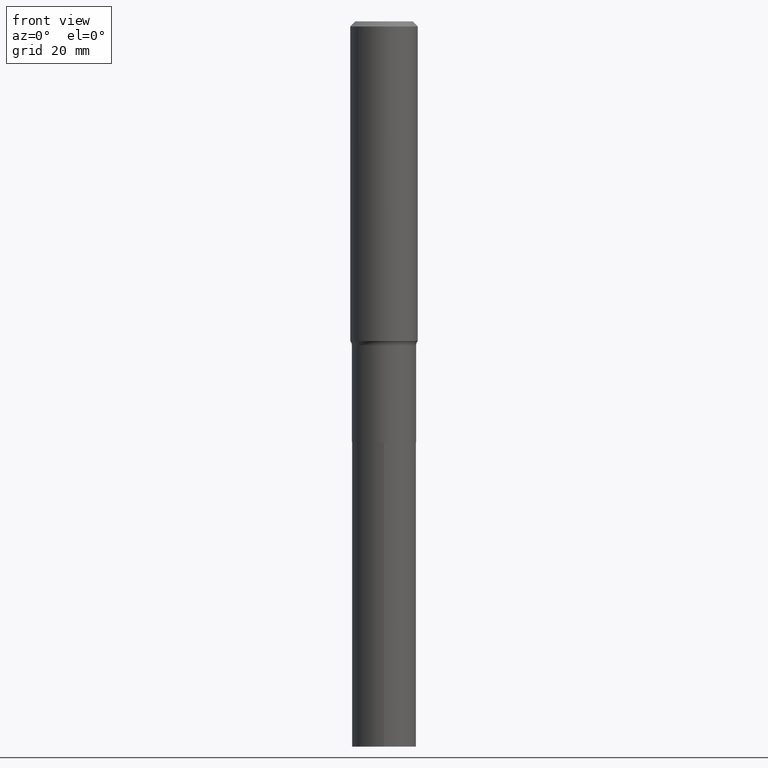
[diagram: clean part render]
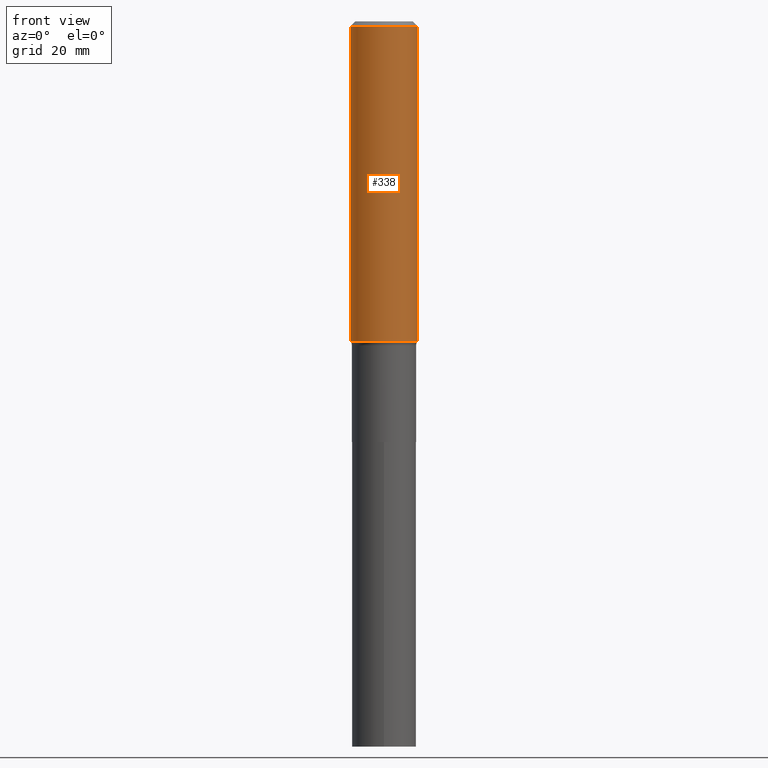
[diagram: same view with one face highlighted and labeled with its STEP entity id]
A machine part, front view. The second image highlights one B-rep face of the part: STEP entity #338.
In plain terms, the highlighted cylindrical surface (edge-blend (fillet) strip) has radius 10 mm, axis along (-0, 0, 1).
Its self-contained STEP definition (entity closure, byte-faithful):
#18 = EDGE_CURVE ( 'NONE', #465, #60, #77, .T. ) ;
#20 = DIRECTION ( 'NONE',  ( -2.445468806185136597E-29, 3.491481338843145583E-15, 1.000000000000000000 ) ) ;
#25 = VERTEX_POINT ( 'NONE', #265 ) ;
#36 = CARTESIAN_POINT ( 'NONE',  ( 9.123302149498150808E-29, -1.302565754387660920E-14, -3.730696595443491859 ) ) ;
#41 = CIRCLE ( 'NONE', #414, 0.3937000000000004940 ) ;
#53 = CYLINDRICAL_SURFACE ( 'NONE', #324, 0.3937000000000002164 ) ;
#60 = VERTEX_POINT ( 'NONE', #443 ) ;
#64 = ORIENTED_EDGE ( 'NONE', *, *, #71, .T. ) ;
#71 = EDGE_CURVE ( 'NONE', #465, #25, #41, .T. ) ;
#72 = VECTOR ( 'NONE', #448, 39.37007874015748143 ) ;
#77 = LINE ( 'NONE', #344, #99 ) ;
#99 = VECTOR ( 'NONE', #226, 39.37007874015748143 ) ;
#110 = LINE ( 'NONE', #310, #72 ) ;
#122 = AXIS2_PLACEMENT_3D ( 'NONE', #316, #455, #130 ) ;
#130 = DIRECTION ( 'NONE',  ( 1.000000000000000000, -6.982962677686265922E-15, 0.000000000000000000 ) ) ;
#143 = EDGE_LOOP ( 'NONE', ( #203, #64, #362, #254 ) ) ;
#163 = DIRECTION ( 'NONE',  ( 1.000000000000000000, -6.982962677686266711E-15, 4.876176775795935793E-29 ) ) ;
#174 = EDGE_CURVE ( 'NONE', #25, #434, #110, .T. ) ;
#180 = CIRCLE ( 'NONE', #122, 0.3937000000000000499 ) ;
#203 = ORIENTED_EDGE ( 'NONE', *, *, #18, .F. ) ;
#226 = DIRECTION ( 'NONE',  ( -2.445468806185136877E-29, 3.491481338843145188E-15, 1.000000000000000000 ) ) ;
#233 = DIRECTION ( 'NONE',  ( 1.000000000000000000, -6.982962677686265133E-15, 0.000000000000000000 ) ) ;
#242 = CARTESIAN_POINT ( 'NONE',  ( -0.3937000000000006605, -1.022825079318909047E-14, -3.730696595443491859 ) ) ;
#254 = ORIENTED_EDGE ( 'NONE', *, *, #343, .F. ) ;
#265 = CARTESIAN_POINT ( 'NONE',  ( 0.3937000000000006605, -1.577484995008169557E-14, -3.730696595443491859 ) ) ;
#310 = CARTESIAN_POINT ( 'NONE',  ( 0.3937000000000002164, -2.749192406205084794E-15, 1.919750796630861012E-29 ) ) ;
#315 = FACE_OUTER_BOUND ( 'NONE', #143, .T. ) ;
#316 = CARTESIAN_POINT ( 'NONE',  ( 1.444171603492642072E-30, -2.061894304653833712E-16, -0.05905500000000039884 ) ) ;
#324 = AXIS2_PLACEMENT_3D ( 'NONE', #353, #20, #163 ) ;
#338 = ADVANCED_FACE ( 'NONE', ( #315 ), #53, .T. ) ;
#343 = EDGE_CURVE ( 'NONE', #60, #434, #180, .T. ) ;
#344 = CARTESIAN_POINT ( 'NONE',  ( -0.3937000000000002164, 2.797406750687515970E-15, -1.936584745033357576E-29 ) ) ;
#353 = CARTESIAN_POINT ( 'NONE',  ( 0.000000000000000000, 0.000000000000000000, 0.000000000000000000 ) ) ;
#362 = ORIENTED_EDGE ( 'NONE', *, *, #174, .T. ) ;
#371 = DIRECTION ( 'NONE',  ( -2.445468806185136597E-29, 3.491481338843145583E-15, 1.000000000000000000 ) ) ;
#414 = AXIS2_PLACEMENT_3D ( 'NONE', #36, #371, #233 ) ;
#428 = CARTESIAN_POINT ( 'NONE',  ( 0.3937000000000000499, -2.955381836670466588E-15, -0.05905500000000039884 ) ) ;
#434 = VERTEX_POINT ( 'NONE', #428 ) ;
#443 = CARTESIAN_POINT ( 'NONE',  ( -0.3937000000000000499, -3.818516736483479131E-15, -0.05905500000000039884 ) ) ;
#448 = DIRECTION ( 'NONE',  ( -2.445468806185136877E-29, 3.491481338843145188E-15, 1.000000000000000000 ) ) ;
#455 = DIRECTION ( 'NONE',  ( -2.445468806185136597E-29, 3.491481338843145583E-15, 1.000000000000000000 ) ) ;
#465 = VERTEX_POINT ( 'NONE', #242 ) ;